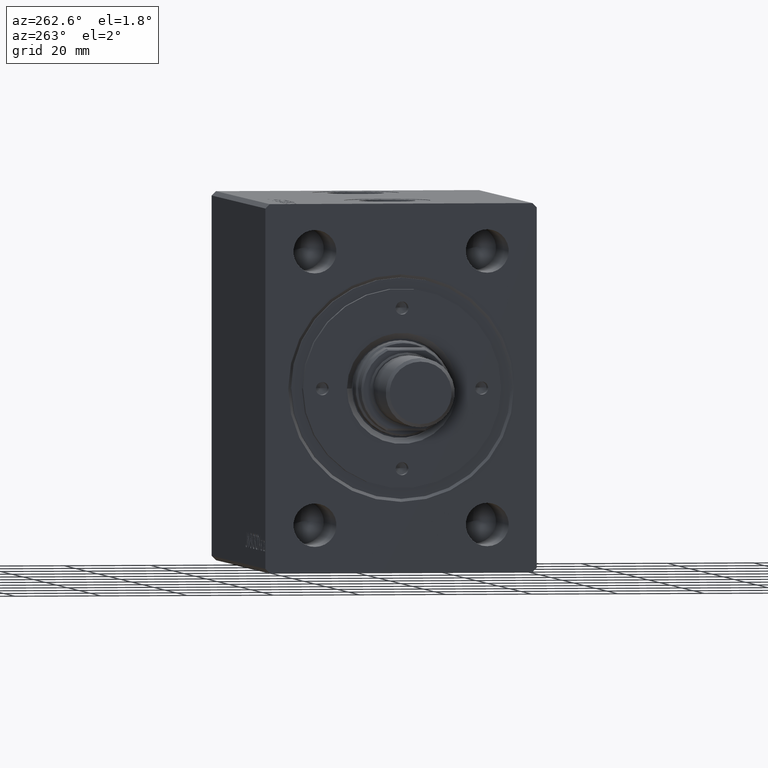
[diagram: clean part render]
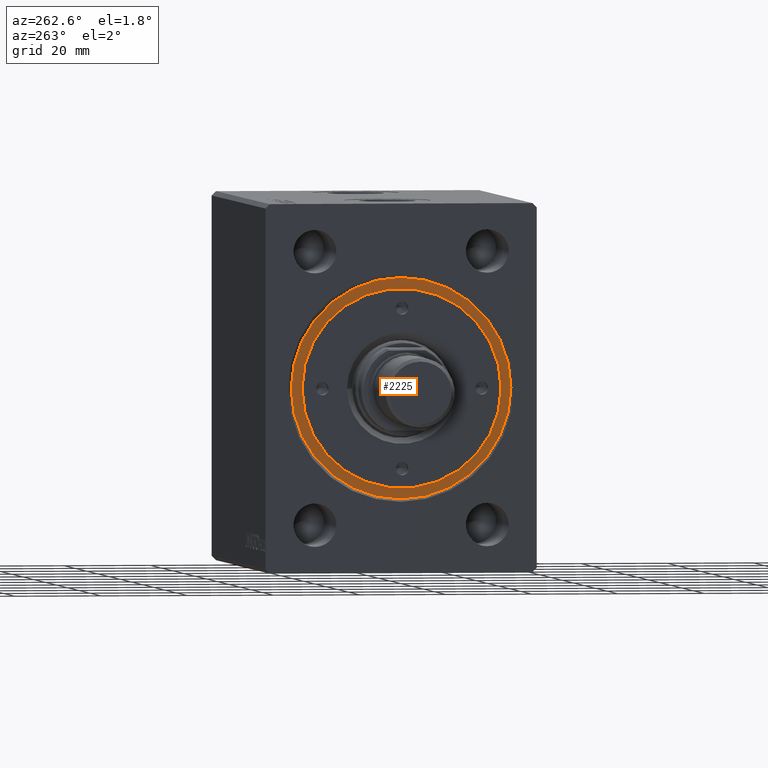
[diagram: same view with one face highlighted and labeled with its STEP entity id]
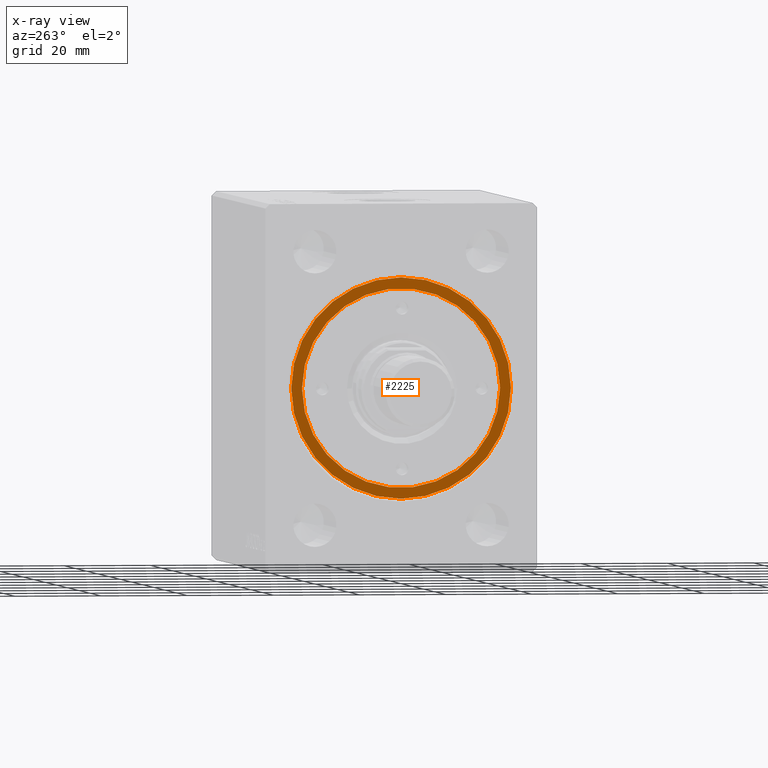
[diagram: x-ray of the same camera — body ghosted, the highlighted face saturated]
A machine part, auxiliary view. The second image highlights one B-rep face of the part: STEP entity #2225.
The next image is the same camera in x-ray: the body ghosted, the highlighted face saturated — about 0% of this face is hidden behind the body in this view.
In plain terms, the highlighted planar face has unit normal (-1, 0, 0).
Its self-contained STEP definition (entity closure, byte-faithful):
#1978 = PLANE ( 'NONE',  #4788 ) ;
#2225 = ADVANCED_FACE ( 'NONE', ( #5354, #30080 ), #1978, .T. ) ;
#4005 = CARTESIAN_POINT ( 'NONE',  ( 25.50000000000000000, 3.122849337825750222E-15, 8.199999999999999289 ) ) ;
#4788 = AXIS2_PLACEMENT_3D ( 'NONE', #9623, #26028, #40181 ) ;
#4821 = EDGE_CURVE ( 'NONE', #12414, #31719, #21416, .T. ) ;
#5354 = FACE_BOUND ( 'NONE', #27946, .T. ) ;
#8272 = CIRCLE ( 'NONE', #35554, 25.50000000000000000 ) ;
#8483 = EDGE_LOOP ( 'NONE', ( #15252, #14325 ) ) ;
#9623 = CARTESIAN_POINT ( 'NONE',  ( 0.000000000000000000, 0.000000000000000000, 8.199999999999999289 ) ) ;
#9932 = AXIS2_PLACEMENT_3D ( 'NONE', #27574, #17685, #31404 ) ;
#10031 = CARTESIAN_POINT ( 'NONE',  ( -25.50000000000000000, 0.000000000000000000, 8.199999999999999289 ) ) ;
#10442 = ORIENTED_EDGE ( 'NONE', *, *, #10479, .F. ) ;
#10479 = EDGE_CURVE ( 'NONE', #31719, #12414, #11464, .T. ) ;
#11464 = CIRCLE ( 'NONE', #31602, 23.00000000000000000 ) ;
#12414 = VERTEX_POINT ( 'NONE', #34345 ) ;
#14325 = ORIENTED_EDGE ( 'NONE', *, *, #18608, .T. ) ;
#15252 = ORIENTED_EDGE ( 'NONE', *, *, #41175, .T. ) ;
#16145 = ORIENTED_EDGE ( 'NONE', *, *, #4821, .F. ) ;
#17685 = DIRECTION ( 'NONE',  ( 0.000000000000000000, 0.000000000000000000, 1.000000000000000000 ) ) ;
#18542 = DIRECTION ( 'NONE',  ( 1.000000000000000000, 0.000000000000000000, 0.000000000000000000 ) ) ;
#18608 = EDGE_CURVE ( 'NONE', #31096, #39118, #39590, .T. ) ;
#18764 = AXIS2_PLACEMENT_3D ( 'NONE', #25623, #33038, #33935 ) ;
#21416 = CIRCLE ( 'NONE', #9932, 23.00000000000000000 ) ;
#25506 = DIRECTION ( 'NONE',  ( 0.000000000000000000, 0.000000000000000000, 1.000000000000000000 ) ) ;
#25623 = CARTESIAN_POINT ( 'NONE',  ( 0.000000000000000000, 0.000000000000000000, 8.199999999999999289 ) ) ;
#26028 = DIRECTION ( 'NONE',  ( 0.000000000000000000, 0.000000000000000000, 1.000000000000000000 ) ) ;
#26775 = CARTESIAN_POINT ( 'NONE',  ( 23.00000000000000000, 2.816687638038912352E-15, 8.199999999999999289 ) ) ;
#27574 = CARTESIAN_POINT ( 'NONE',  ( 0.000000000000000000, 0.000000000000000000, 8.199999999999999289 ) ) ;
#27946 = EDGE_LOOP ( 'NONE', ( #16145, #10442 ) ) ;
#28227 = DIRECTION ( 'NONE',  ( 0.000000000000000000, 0.000000000000000000, 1.000000000000000000 ) ) ;
#28438 = CARTESIAN_POINT ( 'NONE',  ( 0.000000000000000000, 0.000000000000000000, 8.199999999999999289 ) ) ;
#30080 = FACE_OUTER_BOUND ( 'NONE', #8483, .T. ) ;
#31096 = VERTEX_POINT ( 'NONE', #4005 ) ;
#31404 = DIRECTION ( 'NONE',  ( 1.000000000000000000, 0.000000000000000000, 0.000000000000000000 ) ) ;
#31602 = AXIS2_PLACEMENT_3D ( 'NONE', #32478, #28227, #18542 ) ;
#31719 = VERTEX_POINT ( 'NONE', #26775 ) ;
#32478 = CARTESIAN_POINT ( 'NONE',  ( 0.000000000000000000, 0.000000000000000000, 8.199999999999999289 ) ) ;
#33038 = DIRECTION ( 'NONE',  ( 0.000000000000000000, 0.000000000000000000, 1.000000000000000000 ) ) ;
#33935 = DIRECTION ( 'NONE',  ( 1.000000000000000000, 0.000000000000000000, 0.000000000000000000 ) ) ;
#34345 = CARTESIAN_POINT ( 'NONE',  ( -23.00000000000000000, 0.000000000000000000, 8.199999999999999289 ) ) ;
#35554 = AXIS2_PLACEMENT_3D ( 'NONE', #28438, #25506, #39206 ) ;
#39118 = VERTEX_POINT ( 'NONE', #10031 ) ;
#39206 = DIRECTION ( 'NONE',  ( 1.000000000000000000, 0.000000000000000000, 0.000000000000000000 ) ) ;
#39590 = CIRCLE ( 'NONE', #18764, 25.50000000000000000 ) ;
#40181 = DIRECTION ( 'NONE',  ( 1.000000000000000000, 0.000000000000000000, -0.000000000000000000 ) ) ;
#41175 = EDGE_CURVE ( 'NONE', #39118, #31096, #8272, .T. ) ;